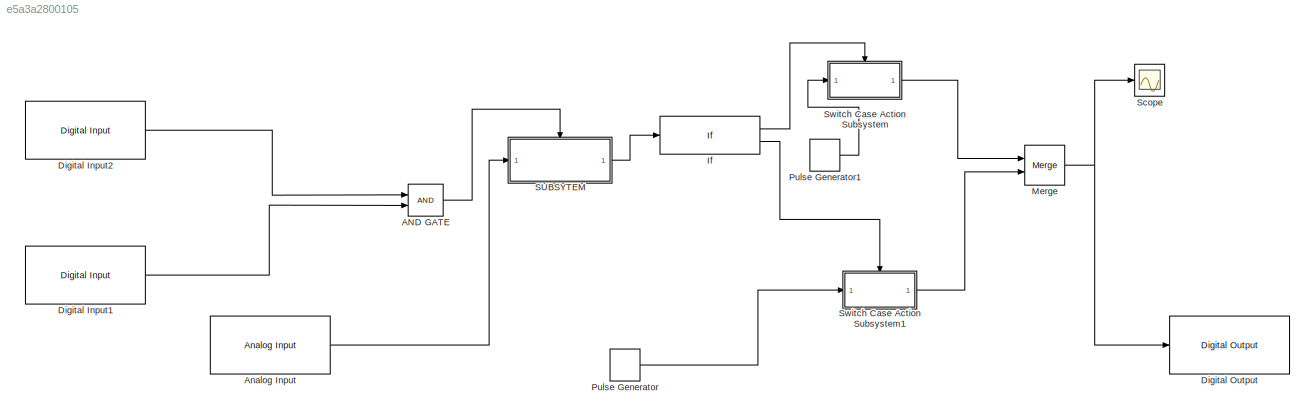
MODEL slx_e5a3a2800105
KIND model
CONFIG AbsTol = auto
CONFIG EnableMultiTasking = off
CONFIG FixedStep = auto
CONFIG MaxStep = auto
CONFIG MinStep = auto
CONFIG RelTol = 1e-3
CONFIG SampleTimeConstraint = Unconstrained
CONFIG SolverName = VariableStepAuto
CONFIG StartTime = 0.0
CONFIG StopTime = 10.0
BLOCK [Logic] AND GATE
  AllPortsSameDT = off
  IconShape = distinctive
  OutDataTypeStr = boolean
  Ports = [2, 1]
BLOCK [Reference] Analog Input  REF=arduinolib/Analog Input
  Ports = [0, 1]
  SourceBlock = arduinolib/Analog Input
  SourceProductBaseCode = ARDUINO
  SourceType = Arduino Analog Input
BLOCK [Reference] Digital Input1  REF=arduinolib/Digital Input
  Ports = [0, 1]
  SourceBlock = arduinolib/Digital Input
  SourceProductBaseCode = ARDUINO
  SourceType = Arduino Digital Input
BLOCK [Reference] Digital Input2  REF=arduinolib/Digital Input
  Ports = [0, 1]
  SourceBlock = arduinolib/Digital Input
  SourceProductBaseCode = ARDUINO
  SourceType = Arduino Digital Input
BLOCK [Reference] Digital Output  REF=arduinolib/Digital Output
  Ports = [1]
  SourceBlock = arduinolib/Digital Output
  SourceProductBaseCode = ARDUINO
  SourceType = Arduino Digital Output
BLOCK [If] If
  IfExpression = u1> 18
  Ports = [1, 2]
BLOCK [Merge] Merge
  Ports = [2, 1]
BLOCK [DiscretePulseGenerator] Pulse Generator
  Period = 10
  Ports = [0, 1]
  PulseType = Time based
  PulseWidth = 5
BLOCK [DiscretePulseGenerator] Pulse Generator1
  Period = 10
  Ports = [0, 1]
  PulseType = Time based
  PulseWidth = 5
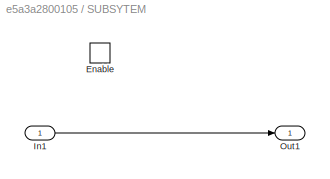
BLOCK [SubSystem] SUBSYTEM
  Ports = [1, 1, 1]
  RequestExecContextInheritance = off
BLOCK [EnablePort] SUBSYTEM/Enable
  Ports = []
BLOCK [Inport] SUBSYTEM/In1
BLOCK [Outport] SUBSYTEM/Out1
BLOCK [Scope] Scope
  Floating = off
  NumInputPorts = 1
  Ports = [1]
  ScopeSpecificationString = Simulink.scopes.TimeScopeBlockCfg('CurrentConfiguration', extmgr.ConfigurationSet(extmgr.Configuration('Core','General UI',true),extmgr.Configuration('Core','Source UI',true),extmgr.Configuration('Sources','WiredSimulink',true),extmgr.Configuration('Visuals','Time Domain',true),extmgr.Configuration('Tools','Plot Navigation',true),extmgr.Configuration('Tools','Measurements',true)),'Version','2020b'...<+1ch>
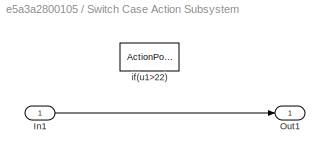
BLOCK [SubSystem] Switch Case Action Subsystem
  Ports = [1, 1, 0, 0, 0, 0, 0, 1]
  RequestExecContextInheritance = off
  TreatAsAtomicUnit = on
BLOCK [Inport] Switch Case Action Subsystem/In1
BLOCK [Outport] Switch Case Action Subsystem/Out1
BLOCK [ActionPort] Switch Case Action Subsystem/if(u1>22)
  ActionPortLabel = if(u1> 18)
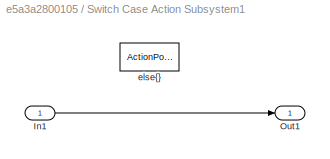
BLOCK [SubSystem] Switch Case Action Subsystem1
  Ports = [1, 1, 0, 0, 0, 0, 0, 1]
  RequestExecContextInheritance = off
  TreatAsAtomicUnit = on
BLOCK [Inport] Switch Case Action Subsystem1/In1
BLOCK [Outport] Switch Case Action Subsystem1/Out1
BLOCK [ActionPort] Switch Case Action Subsystem1/else{}
  ActionPortLabel = else
LINE AND GATE:1 -> SUBSYTEM:enable
LINE Analog Input:1 -> SUBSYTEM:1
LINE Digital Input1:1 -> AND GATE:2
LINE Digital Input2:1 -> AND GATE:1
LINE If:1 -> Switch Case Action Subsystem:ifaction
LINE If:2 -> Switch Case Action Subsystem1:ifaction
NET Merge:1 -> Digital Output:1, Scope:1
LINE Pulse Generator1:1 -> Switch Case Action Subsystem:1
LINE Pulse Generator:1 -> Switch Case Action Subsystem1:1
LINE SUBSYTEM/In1:1 -> SUBSYTEM/Out1:1
LINE SUBSYTEM:1 -> If:1
LINE Switch Case Action Subsystem/In1:1 -> Switch Case Action Subsystem/Out1:1
LINE Switch Case Action Subsystem1/In1:1 -> Switch Case Action Subsystem1/Out1:1
LINE Switch Case Action Subsystem1:1 -> Merge:2
LINE Switch Case Action Subsystem:1 -> Merge:1
note: NET lines group one-source signal fan-out (src -> all destinations, sorted); 1:1 wires keep LINE
